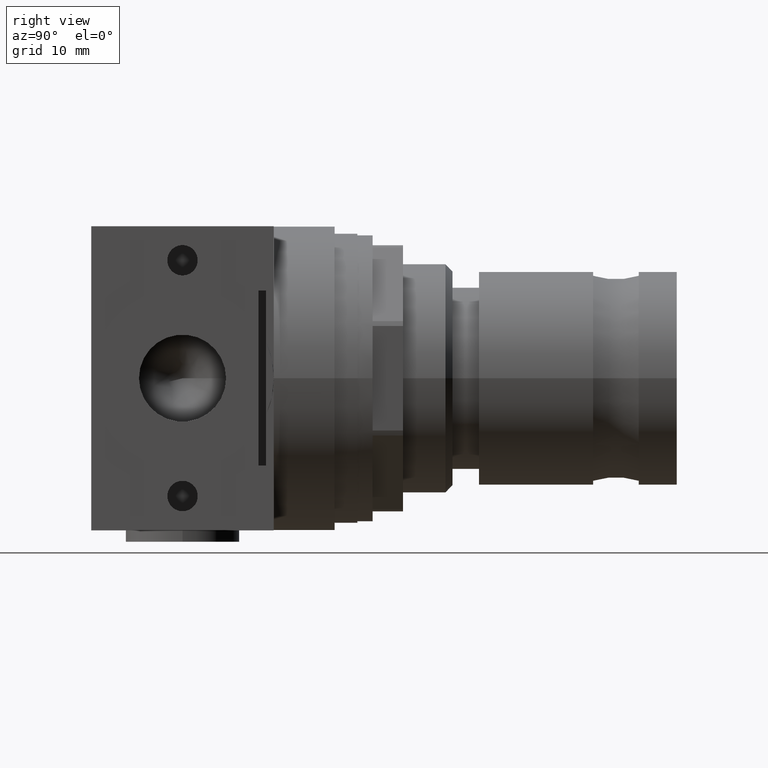
[diagram: clean part render]
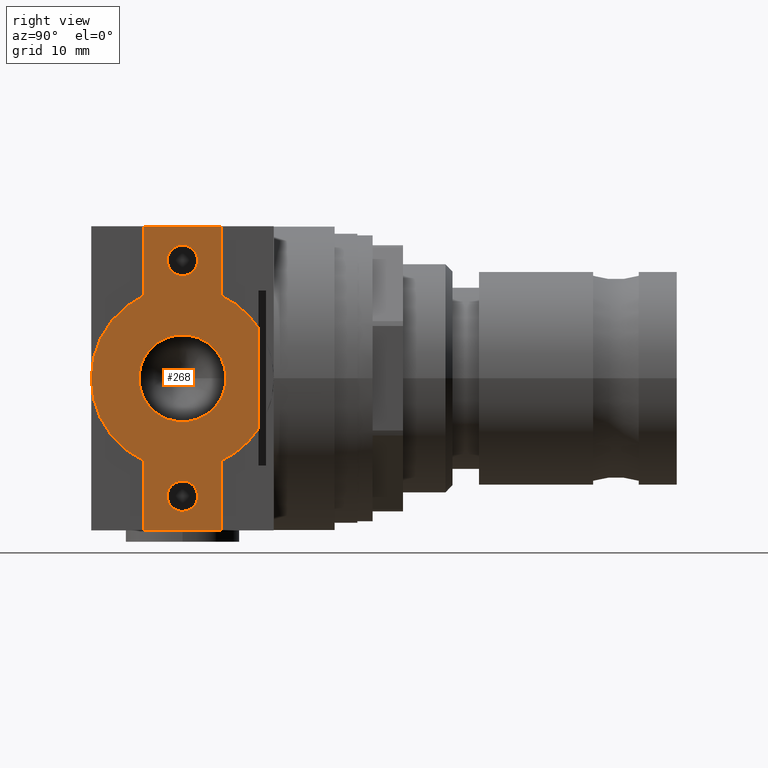
[diagram: same view with one face highlighted and labeled with its STEP entity id]
A machine part, right view. The second image highlights one B-rep face of the part: STEP entity #268.
In plain terms, the highlighted planar face has unit normal (1, 0, 0).
Its self-contained STEP definition (entity closure, byte-faithful):
#268 = ADVANCED_FACE( '', ( #602, #603, #604, #605 ), #606, .T. );
#602 = FACE_BOUND( '', #1047, .T. );
#603 = FACE_OUTER_BOUND( '', #1048, .T. );
#604 = FACE_BOUND( '', #1049, .T. );
#605 = FACE_BOUND( '', #1050, .T. );
#606 = PLANE( '', #1051 );
#1047 = EDGE_LOOP( '', ( #1587 ) );
#1048 = EDGE_LOOP( '', ( #1588, #1589, #1590, #1591, #1592, #1593, #1594, #1595, #1596, #1597 ) );
#1049 = EDGE_LOOP( '', ( #1598 ) );
#1050 = EDGE_LOOP( '', ( #1599 ) );
#1051 = AXIS2_PLACEMENT_3D( '', #1600, #1601, #1602 );
#1587 = ORIENTED_EDGE( '', *, *, #2530, .F. );
#1588 = ORIENTED_EDGE( '', *, *, #2468, .F. );
#1589 = ORIENTED_EDGE( '', *, *, #2531, .T. );
#1590 = ORIENTED_EDGE( '', *, *, #2532, .T. );
#1591 = ORIENTED_EDGE( '', *, *, #2533, .T. );
#1592 = ORIENTED_EDGE( '', *, *, #2534, .T. );
#1593 = ORIENTED_EDGE( '', *, *, #2535, .T. );
#1594 = ORIENTED_EDGE( '', *, *, #2509, .T. );
#1595 = ORIENTED_EDGE( '', *, *, #2536, .T. );
#1596 = ORIENTED_EDGE( '', *, *, #2493, .T. );
#1597 = ORIENTED_EDGE( '', *, *, #2537, .T. );
#1598 = ORIENTED_EDGE( '', *, *, #2447, .F. );
#1599 = ORIENTED_EDGE( '', *, *, #2538, .F. );
#1600 = CARTESIAN_POINT( '', ( 20.0000000000000, 8.67361737988404E-015, 1.73472347597681E-015 ) );
#1601 = DIRECTION( '', ( 1.00000000000000, 0.000000000000000, 0.000000000000000 ) );
#1602 = DIRECTION( '', ( 0.000000000000000, 0.000000000000000, -1.00000000000000 ) );
#2447 = EDGE_CURVE( '', #2861, #2861, #2862, .T. );
#2468 = EDGE_CURVE( '', #2896, #2898, #2899, .T. );
#2493 = EDGE_CURVE( '', #2938, #2936, #2939, .T. );
#2509 = EDGE_CURVE( '', #2963, #2961, #2964, .T. );
#2530 = EDGE_CURVE( '', #2996, #2996, #2997, .T. );
#2531 = EDGE_CURVE( '', #2896, #2998, #2999, .T. );
#2532 = EDGE_CURVE( '', #2998, #3000, #3001, .T. );
#2533 = EDGE_CURVE( '', #3000, #3002, #3003, .T. );
#2534 = EDGE_CURVE( '', #3002, #3004, #3005, .T. );
#2535 = EDGE_CURVE( '', #3004, #2963, #3006, .T. );
#2536 = EDGE_CURVE( '', #2961, #2938, #3007, .T. );
#2537 = EDGE_CURVE( '', #2936, #2898, #3008, .T. );
#2538 = EDGE_CURVE( '', #3009, #3009, #3010, .T. );
#2861 = VERTEX_POINT( '', #3454 );
#2862 = CIRCLE( '', #3455, 2.00000000000000 );
#2896 = VERTEX_POINT( '', #3495 );
#2898 = VERTEX_POINT( '', #3498 );
#2899 = LINE( '', #3499, #3500 );
#2936 = VERTEX_POINT( '', #3554 );
#2938 = VERTEX_POINT( '', #3557 );
#2939 = LINE( '', #3558, #3559 );
#2961 = VERTEX_POINT( '', #3583 );
#2963 = VERTEX_POINT( '', #3586 );
#2964 = LINE( '', #3587, #3588 );
#2996 = VERTEX_POINT( '', #3627 );
#2997 = CIRCLE( '', #3628, 5.72250000000000 );
#2998 = VERTEX_POINT( '', #3629 );
#2999 = CIRCLE( '', #3630, 12.0000000000000 );
#3000 = VERTEX_POINT( '', #3631 );
#3001 = LINE( '', #3632, #3633 );
#3002 = VERTEX_POINT( '', #3634 );
#3003 = LINE( '', #3635, #3636 );
#3004 = VERTEX_POINT( '', #3637 );
#3005 = LINE( '', #3638, #3639 );
#3006 = CIRCLE( '', #3640, 12.0000000000000 );
#3007 = LINE( '', #3641, #3642 );
#3008 = CIRCLE( '', #3643, 12.0000000000000 );
#3009 = VERTEX_POINT( '', #3644 );
#3010 = CIRCLE( '', #3645, 2.00000000000000 );
#3454 = CARTESIAN_POINT( '', ( 20.0000000000000, 0.000000000000000, -17.5000000000000 ) );
#3455 = AXIS2_PLACEMENT_3D( '', #4164, #4165, #4166 );
#3495 = CARTESIAN_POINT( '', ( 20.0000000000000, 10.0000000000000, 6.63324958071079 ) );
#3498 = CARTESIAN_POINT( '', ( 20.0000000000000, 10.0000000000000, -6.63324958071079 ) );
#3499 = CARTESIAN_POINT( '', ( 20.0000000000000, 10.0000000000000, 1.73472347597681E-015 ) );
#3500 = VECTOR( '', #4195, 1000.00000000000 );
#3554 = CARTESIAN_POINT( '', ( 20.0000000000000, 5.10000000000000, -10.8623201941390 ) );
#3557 = CARTESIAN_POINT( '', ( 20.0000000000000, 5.10000000000000, -20.0000000000000 ) );
#3558 = CARTESIAN_POINT( '', ( 20.0000000000000, 5.10000000000000, -20.0000000000000 ) );
#3559 = VECTOR( '', #4214, 1000.00000000000 );
#3583 = CARTESIAN_POINT( '', ( 20.0000000000000, -5.10000000000000, -20.0000000000000 ) );
#3586 = CARTESIAN_POINT( '', ( 20.0000000000000, -5.10000000000000, -10.8623201941390 ) );
#3587 = CARTESIAN_POINT( '', ( 20.0000000000000, -5.10000000000000, -10.8623201941390 ) );
#3588 = VECTOR( '', #4236, 1000.00000000000 );
#3627 = CARTESIAN_POINT( '', ( 20.0000000000000, 5.72250000000000, 0.000000000000000 ) );
#3628 = AXIS2_PLACEMENT_3D( '', #4262, #4263, #4264 );
#3629 = CARTESIAN_POINT( '', ( 20.0000000000000, 5.10000000000000, 10.8623201941390 ) );
#3630 = AXIS2_PLACEMENT_3D( '', #4265, #4266, #4267 );
#3631 = CARTESIAN_POINT( '', ( 20.0000000000000, 5.10000000000000, 20.0000000000000 ) );
#3632 = CARTESIAN_POINT( '', ( 20.0000000000000, 5.10000000000000, 10.8623201941390 ) );
#3633 = VECTOR( '', #4268, 1000.00000000000 );
#3634 = CARTESIAN_POINT( '', ( 20.0000000000000, -5.10000000000000, 20.0000000000000 ) );
#3635 = CARTESIAN_POINT( '', ( 20.0000000000000, 5.10000000000000, 20.0000000000000 ) );
#3636 = VECTOR( '', #4269, 1000.00000000000 );
#3637 = CARTESIAN_POINT( '', ( 20.0000000000000, -5.10000000000000, 10.8623201941390 ) );
#3638 = CARTESIAN_POINT( '', ( 20.0000000000000, -5.10000000000000, 20.0000000000000 ) );
#3639 = VECTOR( '', #4270, 1000.00000000000 );
#3640 = AXIS2_PLACEMENT_3D( '', #4271, #4272, #4273 );
#3641 = CARTESIAN_POINT( '', ( 20.0000000000000, -5.10000000000000, -20.0000000000000 ) );
#3642 = VECTOR( '', #4274, 1000.00000000000 );
#3643 = AXIS2_PLACEMENT_3D( '', #4275, #4276, #4277 );
#3644 = CARTESIAN_POINT( '', ( 20.0000000000000, 0.000000000000000, 13.5000000000000 ) );
#3645 = AXIS2_PLACEMENT_3D( '', #4278, #4279, #4280 );
#4164 = CARTESIAN_POINT( '', ( 20.0000000000000, 0.000000000000000, -15.5000000000000 ) );
#4165 = DIRECTION( '', ( 1.00000000000000, 0.000000000000000, 0.000000000000000 ) );
#4166 = DIRECTION( '', ( 0.000000000000000, 0.000000000000000, -1.00000000000000 ) );
#4195 = DIRECTION( '', ( 0.000000000000000, 0.000000000000000, -1.00000000000000 ) );
#4214 = DIRECTION( '', ( 0.000000000000000, 0.000000000000000, 1.00000000000000 ) );
#4236 = DIRECTION( '', ( 0.000000000000000, 0.000000000000000, -1.00000000000000 ) );
#4262 = CARTESIAN_POINT( '', ( 20.0000000000000, 6.39302180868487E-034, 0.000000000000000 ) );
#4263 = DIRECTION( '', ( 1.00000000000000, -1.05696399205655E-017, -0.000000000000000 ) );
#4264 = DIRECTION( '', ( 1.05696399205655E-017, 1.00000000000000, 0.000000000000000 ) );
#4265 = CARTESIAN_POINT( '', ( 20.0000000000000, -8.67361737988404E-015, -1.73472347597681E-015 ) );
#4266 = DIRECTION( '', ( 1.00000000000000, 0.000000000000000, 0.000000000000000 ) );
#4267 = DIRECTION( '', ( 0.000000000000000, 0.000000000000000, -1.00000000000000 ) );
#4268 = DIRECTION( '', ( 0.000000000000000, 0.000000000000000, 1.00000000000000 ) );
#4269 = DIRECTION( '', ( 0.000000000000000, -1.00000000000000, 0.000000000000000 ) );
#4270 = DIRECTION( '', ( 0.000000000000000, 0.000000000000000, -1.00000000000000 ) );
#4271 = CARTESIAN_POINT( '', ( 20.0000000000000, 8.67361737988404E-015, 1.73472347597681E-015 ) );
#4272 = DIRECTION( '', ( 1.00000000000000, 0.000000000000000, 0.000000000000000 ) );
#4273 = DIRECTION( '', ( 0.000000000000000, 0.000000000000000, -1.00000000000000 ) );
#4274 = DIRECTION( '', ( 0.000000000000000, 1.00000000000000, 0.000000000000000 ) );
#4275 = CARTESIAN_POINT( '', ( 20.0000000000000, -8.67361737988404E-015, -1.73472347597681E-015 ) );
#4276 = DIRECTION( '', ( 1.00000000000000, 0.000000000000000, 0.000000000000000 ) );
#4277 = DIRECTION( '', ( 0.000000000000000, 0.000000000000000, -1.00000000000000 ) );
#4278 = CARTESIAN_POINT( '', ( 20.0000000000000, 0.000000000000000, 15.5000000000000 ) );
#4279 = DIRECTION( '', ( 1.00000000000000, 0.000000000000000, 0.000000000000000 ) );
#4280 = DIRECTION( '', ( 0.000000000000000, 0.000000000000000, -1.00000000000000 ) );